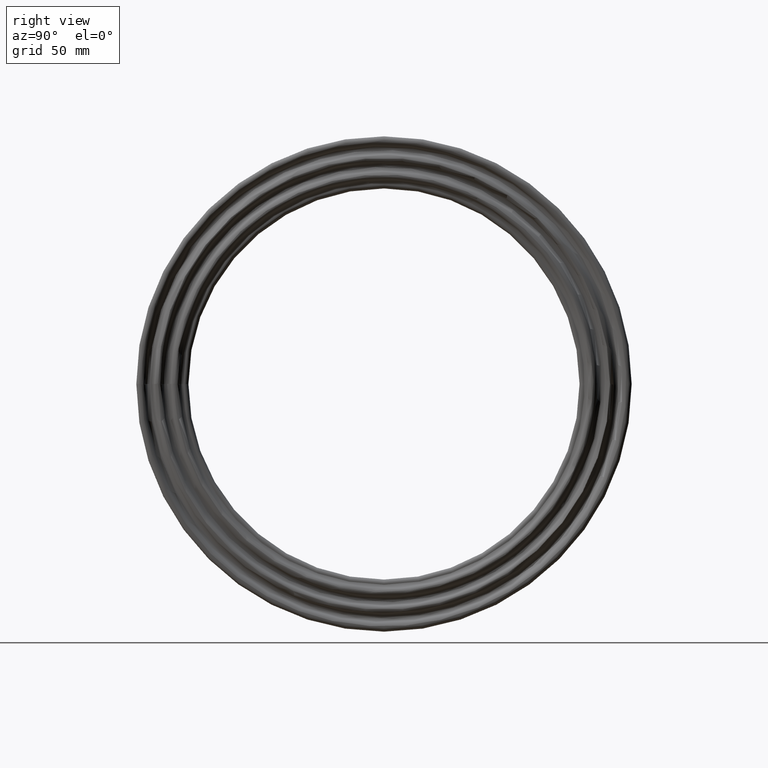
[diagram: clean part render]
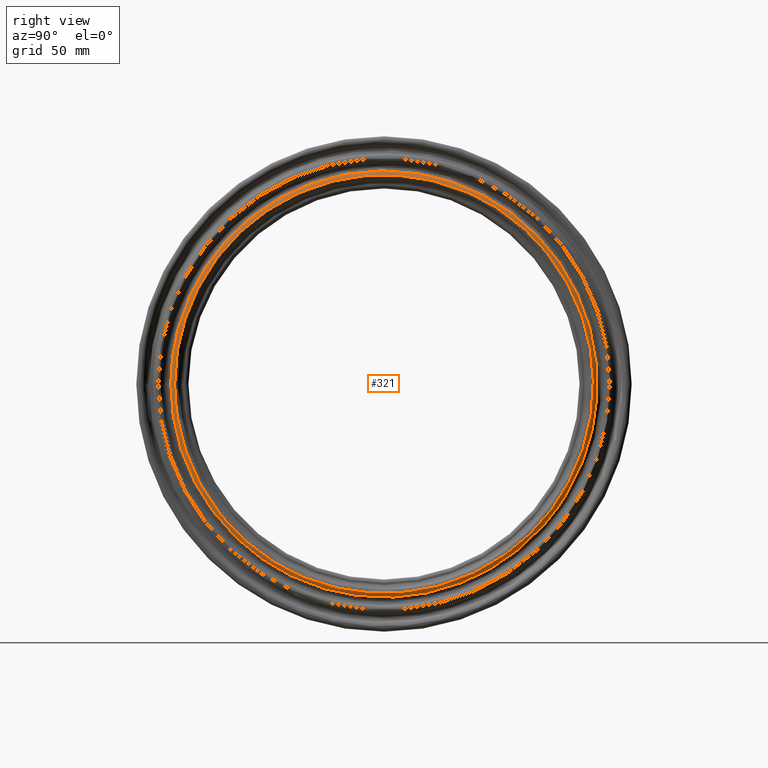
[diagram: same view with one face highlighted and labeled with its STEP entity id]
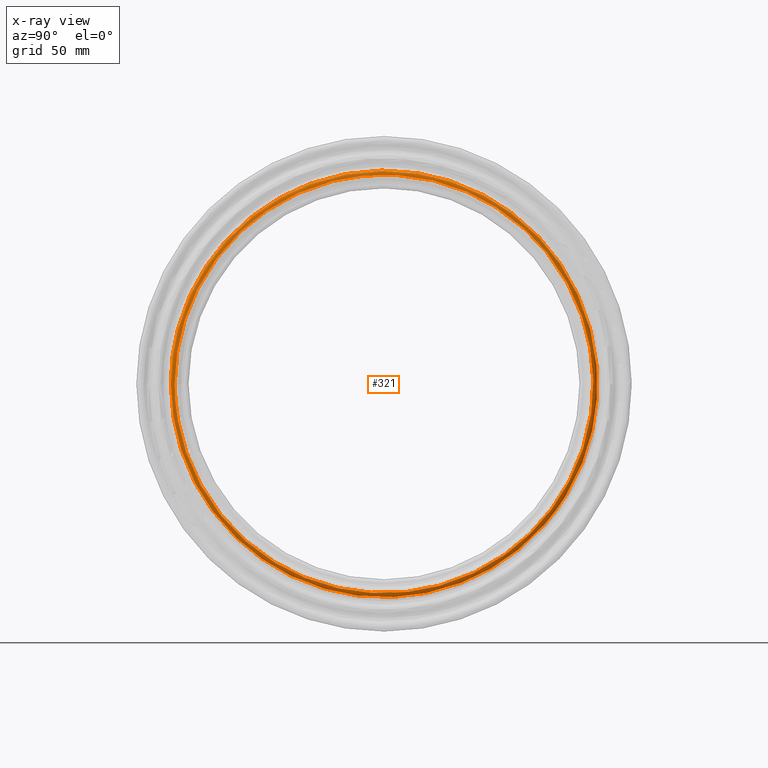
[diagram: x-ray of the same camera — body ghosted, the highlighted face saturated]
A machine part, right view. The second image highlights one B-rep face of the part: STEP entity #321.
The next image is the same camera in x-ray: the body ghosted, the highlighted face saturated — about 0% of this face is hidden behind the body in this view.
In plain terms, the highlighted face is a freeform B-spline surface patch.
Its self-contained STEP definition (entity closure, byte-faithful):
#18=B_SPLINE_SURFACE_WITH_KNOTS('',3,3,((#1991,#1992,#1993,#1994,#1995,
#1996,#1997,#1998,#1999,#2000,#2001,#2002,#2003,#2004,#2005,#2006,#2007,
#2008,#2009,#2010,#2011,#2012,#2013,#2014,#2015,#2016,#2017,#2018,#2019,
#2020,#2021,#2022,#2023,#2024,#2025,#2026,#2027,#2028,#2029,#2030,#2031,
#2032,#2033,#2034,#2035,#2036,#2037,#2038,#2039,#2040,#2041,#2042,#2043,
#2044,#2045,#2046,#2047,#2048,#2049,#2050,#2051),(#2052,#2053,#2054,#2055,
#2056,#2057,#2058,#2059,#2060,#2061,#2062,#2063,#2064,#2065,#2066,#2067,
#2068,#2069,#2070,#2071,#2072,#2073,#2074,#2075,#2076,#2077,#2078,#2079,
#2080,#2081,#2082,#2083,#2084,#2085,#2086,#2087,#2088,#2089,#2090,#2091,
#2092,#2093,#2094,#2095,#2096,#2097,#2098,#2099,#2100,#2101,#2102,#2103,
#2104,#2105,#2106,#2107,#2108,#2109,#2110,#2111,#2112),(#2113,#2114,#2115,
#2116,#2117,#2118,#2119,#2120,#2121,#2122,#2123,#2124,#2125,#2126,#2127,
#2128,#2129,#2130,#2131,#2132,#2133,#2134,#2135,#2136,#2137,#2138,#2139,
#2140,#2141,#2142,#2143,#2144,#2145,#2146,#2147,#2148,#2149,#2150,#2151,
#2152,#2153,#2154,#2155,#2156,#2157,#2158,#2159,#2160,#2161,#2162,#2163,
#2164,#2165,#2166,#2167,#2168,#2169,#2170,#2171,#2172,#2173),(#2174,#2175,
#2176,#2177,#2178,#2179,#2180,#2181,#2182,#2183,#2184,#2185,#2186,#2187,
#2188,#2189,#2190,#2191,#2192,#2193,#2194,#2195,#2196,#2197,#2198,#2199,
#2200,#2201,#2202,#2203,#2204,#2205,#2206,#2207,#2208,#2209,#2210,#2211,
#2212,#2213,#2214,#2215,#2216,#2217,#2218,#2219,#2220,#2221,#2222,#2223,
#2224,#2225,#2226,#2227,#2228,#2229,#2230,#2231,#2232,#2233,#2234),(#2235,
#2236,#2237,#2238,#2239,#2240,#2241,#2242,#2243,#2244,#2245,#2246,#2247,
#2248,#2249,#2250,#2251,#2252,#2253,#2254,#2255,#2256,#2257,#2258,#2259,
#2260,#2261,#2262,#2263,#2264,#2265,#2266,#2267,#2268,#2269,#2270,#2271,
#2272,#2273,#2274,#2275,#2276,#2277,#2278,#2279,#2280,#2281,#2282,#2283,
#2284,#2285,#2286,#2287,#2288,#2289,#2290,#2291,#2292,#2293,#2294,#2295)),
 .UNSPECIFIED.,.F.,.T.,.F.,(4,1,4),(4,1,1,1,1,1,1,1,1,1,1,1,1,1,1,1,1,1,
1,1,1,1,1,1,1,1,1,1,1,1,1,1,1,1,1,1,1,1,1,1,1,1,1,1,1,1,1,1,1,1,1,1,1,1,
1,1,1,1,4),(0.,0.571428571428571,1.),(50.0204659856099,51.8069111993817,
53.5933564131535,55.3798016269253,57.1662468406971,60.7391372682406,62.5255824820124,
64.3120276957842,67.4879302980452,69.0758815991756,72.6487720267192,73.8397355025671,
75.0306989784149,76.2216624542628,78.6035894059585,79.7945528818063,80.9855163576542,
83.3674433093499,85.7493702610456,86.9403337368935,88.1312972127413,92.8951511161327,
94.0861145919806,95.2770780678285,97.6590050195242,98.849968495372,100.636413709144,
102.422858922916,104.804785874611,107.186712826307,108.377676302155,111.950566729698,
113.141530205546,114.332493681394,115.22571628828,116.71442063309,119.096347584786,
120.287311060633,120.585051929595,121.478274536481,123.264719750253,125.051164964025,
126.837610177797,128.624055391568,130.41050060534,131.601464081188,133.38790929496,
135.769836246656,137.556281460427,138.896115370756,139.342726674199,141.129171887971,
142.915617101743,143.362228405186,144.702062315514,146.488507529286,148.274952743058,
148.721564046501,150.06139795683),.UNSPECIFIED.);
#26=B_SPLINE_CURVE_WITH_KNOTS('',3,(#962,#963,#964,#965,#966,#967,#968,
#969,#970,#971,#972,#973,#974,#975,#976,#977,#978,#979,#980,#981,#982,#983,
#984,#985,#986,#987,#988,#989,#990,#991,#992,#993,#994,#995,#996,#997,#998,
#999,#1000,#1001,#1002,#1003,#1004,#1005,#1006,#1007,#1008,#1009,#1010,
#1011,#1012,#1013,#1014,#1015,#1016,#1017,#1018,#1019,#1020,#1021,#1022),
 .UNSPECIFIED.,.T.,.F.,(4,1,1,1,1,1,1,1,1,1,1,1,1,1,1,1,1,1,1,1,1,1,1,1,
1,1,1,1,1,1,1,1,1,1,1,1,1,1,1,1,1,1,1,1,1,1,1,1,1,1,1,1,1,1,1,1,1,1,4),
(50.0204659856099,51.8069111993817,53.5933564131535,55.3798016269253,57.1662468406971,
60.7391372682406,62.5255824820124,64.3120276957842,67.4879302980452,69.0758815991756,
72.6487720267192,73.8397355025671,75.0306989784149,76.2216624542628,78.6035894059585,
79.7945528818063,80.9855163576542,83.3674433093499,85.7493702610456,86.9403337368935,
88.1312972127413,92.8951511161327,94.0861145919806,95.2770780678285,97.6590050195242,
98.849968495372,100.636413709144,102.422858922916,104.804785874611,107.186712826307,
108.377676302155,111.950566729698,113.141530205546,114.332493681394,115.22571628828,
116.71442063309,119.096347584786,120.287311060633,120.585051929595,121.478274536481,
123.264719750253,125.051164964025,126.837610177797,128.624055391568,130.41050060534,
131.601464081188,133.38790929496,135.769836246656,137.556281460427,138.896115370756,
139.342726674199,141.129171887971,142.915617101743,143.362228405186,144.702062315514,
146.488507529286,148.274952743058,148.721564046501,150.06139795683),
 .UNSPECIFIED.);
#31=B_SPLINE_CURVE_WITH_KNOTS('',3,(#2298,#2299,#2300,#2301,#2302,#2303,
#2304,#2305,#2306,#2307,#2308,#2309,#2310,#2311,#2312,#2313,#2314,#2315,
#2316,#2317,#2318,#2319,#2320,#2321,#2322,#2323,#2324,#2325,#2326,#2327,
#2328,#2329,#2330,#2331,#2332,#2333,#2334,#2335,#2336,#2337,#2338,#2339,
#2340,#2341,#2342,#2343,#2344,#2345,#2346,#2347,#2348,#2349,#2350,#2351,
#2352,#2353,#2354,#2355,#2356,#2357,#2358),.UNSPECIFIED.,.T.,.F.,(4,1,1,
1,1,1,1,1,1,1,1,1,1,1,1,1,1,1,1,1,1,1,1,1,1,1,1,1,1,1,1,1,1,1,1,1,1,1,1,
1,1,1,1,1,1,1,1,1,1,1,1,1,1,1,1,1,1,1,4),(-150.06139795683,-148.721564046501,
-148.274952743058,-146.488507529286,-144.702062315514,-143.362228405186,
-142.915617101743,-141.129171887971,-139.342726674199,-138.896115370756,
-137.556281460427,-135.769836246656,-133.38790929496,-131.601464081188,
-130.41050060534,-128.624055391568,-126.837610177797,-125.051164964025,
-123.264719750253,-121.478274536481,-120.585051929595,-120.287311060633,
-119.096347584786,-116.71442063309,-115.22571628828,-114.332493681394,-113.141530205546,
-111.950566729698,-108.377676302155,-107.186712826307,-104.804785874611,
-102.422858922916,-100.636413709144,-98.849968495372,-97.6590050195242,
-95.2770780678285,-94.0861145919806,-92.8951511161327,-88.1312972127413,
-86.9403337368935,-85.7493702610456,-83.3674433093499,-80.9855163576542,
-79.7945528818063,-78.6035894059585,-76.2216624542628,-75.0306989784149,
-73.8397355025671,-72.6487720267192,-69.0758815991756,-67.4879302980452,
-64.3120276957842,-62.5255824820124,-60.7391372682406,-57.1662468406971,
-55.3798016269253,-53.5933564131535,-51.8069111993817,-50.0204659856099),
 .UNSPECIFIED.);
#82=FACE_OUTER_BOUND('',#123,.T.);
#123=EDGE_LOOP('',(#267,#268,#269,#270));
#160=CIRCLE('',#363,3.15000000000001);
#174=VERTEX_POINT('',#961);
#187=VERTEX_POINT('',#2296);
#203=EDGE_CURVE('',#174,#174,#26,.T.);
#218=EDGE_CURVE('',#187,#174,#160,.T.);
#219=EDGE_CURVE('',#187,#187,#31,.T.);
#267=ORIENTED_EDGE('',*,*,#218,.T.);
#268=ORIENTED_EDGE('',*,*,#203,.T.);
#269=ORIENTED_EDGE('',*,*,#218,.F.);
#270=ORIENTED_EDGE('',*,*,#219,.T.);
#321=ADVANCED_FACE('',(#82),#18,.F.);
#363=AXIS2_PLACEMENT_3D('',#2297,#439,#440);
#439=DIRECTION('center_axis',(0.,0.000811828910618047,0.999999670466856));
#440=DIRECTION('ref_axis',(0.357142857142858,-0.934049465815499,0.000758288610177595));
#961=CARTESIAN_POINT('',(161.,-160.182100307558,0.130040502846663));
#962=CARTESIAN_POINT('Ctrl Pts',(161.,-160.182217161811,0.131077211763946));
#963=CARTESIAN_POINT('Ctrl Pts',(161.,-160.17685338477,6.10006889185622));
#964=CARTESIAN_POINT('Ctrl Pts',(161.,-159.49869896308,18.0865289440742));
#965=CARTESIAN_POINT('Ctrl Pts',(161.,-156.452207686915,35.9231445181339));
#966=CARTESIAN_POINT('Ctrl Pts',(161.,-151.436522652501,53.2041035957932));
#967=CARTESIAN_POINT('Ctrl Pts',(161.,-142.299373202569,75.2540143927501));
#968=CARTESIAN_POINT('Ctrl Pts',(161.,-129.325462171906,95.8508988559387));
#969=CARTESIAN_POINT('Ctrl Pts',(161.,-113.394423673286,113.599101769618));
#970=CARTESIAN_POINT('Ctrl Pts',(161.,-96.4785436739874,128.719763633802));
#971=CARTESIAN_POINT('Ctrl Pts',(161.,-77.7977212089984,140.723693796945));
#972=CARTESIAN_POINT('Ctrl Pts',(161.,-52.439536006824,152.126138464357));
#973=CARTESIAN_POINT('Ctrl Pts',(161.,-31.576952268991,157.713676121384));
#974=CARTESIAN_POINT('Ctrl Pts',(161.,-11.7192605399758,159.896652623519));
#975=CARTESIAN_POINT('Ctrl Pts',(161.,0.184152458222829,160.332137622436));
#976=CARTESIAN_POINT('Ctrl Pts',(161.,16.171134752522,159.71528869166));
#977=CARTESIAN_POINT('Ctrl Pts',(161.,32.0820096288011,157.296398825762));
#978=CARTESIAN_POINT('Ctrl Pts',(161.,47.5366498968946,153.120757297653));
#979=CARTESIAN_POINT('Ctrl Pts',(161.,62.5242275773635,147.850220268969));
#980=CARTESIAN_POINT('Ctrl Pts',(161.,80.5897632097906,139.134466120523));
#981=CARTESIAN_POINT('Ctrl Pts',(161.,97.205309580386,127.75598808102));
#982=CARTESIAN_POINT('Ctrl Pts',(161.,109.229919327096,117.359830726874));
#983=CARTESIAN_POINT('Ctrl Pts',(161.,126.14933778704,100.422916751779));
#984=CARTESIAN_POINT('Ctrl Pts',(161.,139.861418114574,80.2143438391541));
#985=CARTESIAN_POINT('Ctrl Pts',(161.,149.321453736568,58.3723127178469));
#986=CARTESIAN_POINT('Ctrl Pts',(161.,154.585580532244,43.2905421479426));
#987=CARTESIAN_POINT('Ctrl Pts',(161.,158.102741740798,27.782074089411));
#988=CARTESIAN_POINT('Ctrl Pts',(161.,160.111235684743,9.93508578134736));
#989=CARTESIAN_POINT('Ctrl Pts',(161.,160.402764696786,-5.95354013930585));
#990=CARTESIAN_POINT('Ctrl Pts',(161.,158.552017168216,-25.8880343458323));
#991=CARTESIAN_POINT('Ctrl Pts',(161.,153.605988202001,-47.4923159553659));
#992=CARTESIAN_POINT('Ctrl Pts',(161.,146.327194139291,-66.0058998359512));
#993=CARTESIAN_POINT('Ctrl Pts',(161.,135.125258592552,-87.2385835683957));
#994=CARTESIAN_POINT('Ctrl Pts',(161.,123.098962174474,-103.498635483902));
#995=CARTESIAN_POINT('Ctrl Pts',(161.,109.05752491777,-117.523234232649));
#996=CARTESIAN_POINT('Ctrl Pts',(161.,100.716851446407,-124.706444279632));
#997=CARTESIAN_POINT('Ctrl Pts',(161.,91.1169885578279,-131.929579585935));
#998=CARTESIAN_POINT('Ctrl Pts',(161.,77.5744812368648,-140.605034341536));
#999=CARTESIAN_POINT('Ctrl Pts',(161.,62.3005274143973,-147.944509824352));
#1000=CARTESIAN_POINT('Ctrl Pts',(161.,50.0766680112518,-152.22266533277));
#1001=CARTESIAN_POINT('Ctrl Pts',(161.,42.3972088056839,-154.511053599175));
#1002=CARTESIAN_POINT('Ctrl Pts',(161.,32.7065788824018,-157.011486513896));
#1003=CARTESIAN_POINT('Ctrl Pts',(161.,17.8282814420963,-159.524622290507));
#1004=CARTESIAN_POINT('Ctrl Pts',(161.,-0.0554432997155231,-160.515271830491));
#1005=CARTESIAN_POINT('Ctrl Pts',(161.,-18.0002809091937,-159.507553380767));
#1006=CARTESIAN_POINT('Ctrl Pts',(161.,-35.8378569025271,-156.471336779666));
#1007=CARTESIAN_POINT('Ctrl Pts',(161.,-51.2305825269405,-152.016222292207));
#1008=CARTESIAN_POINT('Ctrl Pts',(161.,-66.0165202855366,-146.201894574956));
#1009=CARTESIAN_POINT('Ctrl Pts',(161.,-82.1061068543575,-138.083924300881));
#1010=CARTESIAN_POINT('Ctrl Pts',(161.,-98.7356265981504,-126.718393051325));
#1011=CARTESIAN_POINT('Ctrl Pts',(161.,-112.456394018667,-114.428865752443));
#1012=CARTESIAN_POINT('Ctrl Pts',(161.,-120.546307955399,-105.622890479112));
#1013=CARTESIAN_POINT('Ctrl Pts',(161.,-128.165567446644,-96.3293467019235));
#1014=CARTESIAN_POINT('Ctrl Pts',(161.,-135.999050544746,-85.2724973863836));
#1015=CARTESIAN_POINT('Ctrl Pts',(161.,-142.528065653359,-73.4228690557085));
#1016=CARTESIAN_POINT('Ctrl Pts',(161.,-147.537267423109,-62.6083283019011));
#1017=CARTESIAN_POINT('Ctrl Pts',(161.,-151.951425639961,-51.5011340191068));
#1018=CARTESIAN_POINT('Ctrl Pts',(161.,-156.529200186507,-35.5794665574776));
#1019=CARTESIAN_POINT('Ctrl Pts',(161.,-158.781822471634,-22.2250732904864));
#1020=CARTESIAN_POINT('Ctrl Pts',(161.,-159.941318696278,-10.2964794688851));
#1021=CARTESIAN_POINT('Ctrl Pts',(161.,-160.186239994591,-4.34566654830531));
#1022=CARTESIAN_POINT('Ctrl Pts',(161.,-160.182217161811,0.131077211763946));
#1991=CARTESIAN_POINT('Ctrl Pts',(161.,-160.182217161811,0.131077211763946));
#1992=CARTESIAN_POINT('Ctrl Pts',(161.,-160.17685338477,6.10006889185621));
#1993=CARTESIAN_POINT('Ctrl Pts',(161.,-159.49869896308,18.0865289440742));
#1994=CARTESIAN_POINT('Ctrl Pts',(161.,-156.452207686915,35.9231445181339));
#1995=CARTESIAN_POINT('Ctrl Pts',(161.,-151.436522652501,53.2041035957932));
#1996=CARTESIAN_POINT('Ctrl Pts',(161.,-142.299373202569,75.2540143927501));
#1997=CARTESIAN_POINT('Ctrl Pts',(161.,-129.325462171906,95.8508988559387));
#1998=CARTESIAN_POINT('Ctrl Pts',(161.,-113.394423673286,113.599101769618));
#1999=CARTESIAN_POINT('Ctrl Pts',(161.,-96.4785436739874,128.719763633802));
#2000=CARTESIAN_POINT('Ctrl Pts',(161.,-77.7977212089984,140.723693796945));
#2001=CARTESIAN_POINT('Ctrl Pts',(161.,-52.439536006824,152.126138464357));
#2002=CARTESIAN_POINT('Ctrl Pts',(161.,-31.576952268991,157.713676121384));
#2003=CARTESIAN_POINT('Ctrl Pts',(161.,-11.7192605399758,159.896652623519));
#2004=CARTESIAN_POINT('Ctrl Pts',(161.,0.184152458222829,160.332137622436));
#2005=CARTESIAN_POINT('Ctrl Pts',(161.,16.171134752522,159.71528869166));
#2006=CARTESIAN_POINT('Ctrl Pts',(161.,32.0820096288011,157.296398825762));
#2007=CARTESIAN_POINT('Ctrl Pts',(161.,47.5366498968946,153.120757297653));
#2008=CARTESIAN_POINT('Ctrl Pts',(161.,62.5242275773635,147.850220268969));
#2009=CARTESIAN_POINT('Ctrl Pts',(161.,80.5897632097906,139.134466120523));
#2010=CARTESIAN_POINT('Ctrl Pts',(161.,97.205309580386,127.75598808102));
#2011=CARTESIAN_POINT('Ctrl Pts',(161.,109.229919327096,117.359830726874));
#2012=CARTESIAN_POINT('Ctrl Pts',(161.,126.14933778704,100.422916751779));
#2013=CARTESIAN_POINT('Ctrl Pts',(161.,139.861418114574,80.2143438391541));
#2014=CARTESIAN_POINT('Ctrl Pts',(161.,149.321453736568,58.3723127178469));
#2015=CARTESIAN_POINT('Ctrl Pts',(161.,154.585580532244,43.2905421479426));
#2016=CARTESIAN_POINT('Ctrl Pts',(161.,158.102741740798,27.782074089411));
#2017=CARTESIAN_POINT('Ctrl Pts',(161.,160.111235684743,9.93508578134736));
#2018=CARTESIAN_POINT('Ctrl Pts',(161.,160.402764696786,-5.95354013930585));
#2019=CARTESIAN_POINT('Ctrl Pts',(161.,158.552017168216,-25.8880343458323));
#2020=CARTESIAN_POINT('Ctrl Pts',(161.,153.605988202001,-47.4923159553659));
#2021=CARTESIAN_POINT('Ctrl Pts',(161.,146.327194139291,-66.0058998359512));
#2022=CARTESIAN_POINT('Ctrl Pts',(161.,135.125258592552,-87.2385835683957));
#2023=CARTESIAN_POINT('Ctrl Pts',(161.,123.098962174474,-103.498635483902));
#2024=CARTESIAN_POINT('Ctrl Pts',(161.,109.05752491777,-117.523234232649));
#2025=CARTESIAN_POINT('Ctrl Pts',(161.,100.716851446407,-124.706444279632));
#2026=CARTESIAN_POINT('Ctrl Pts',(161.,91.1169885578279,-131.929579585935));
#2027=CARTESIAN_POINT('Ctrl Pts',(161.,77.5744812368648,-140.605034341536));
#2028=CARTESIAN_POINT('Ctrl Pts',(161.,62.3005274143973,-147.944509824352));
#2029=CARTESIAN_POINT('Ctrl Pts',(161.,50.0766680112518,-152.22266533277));
#2030=CARTESIAN_POINT('Ctrl Pts',(161.,42.3972088056839,-154.511053599175));
#2031=CARTESIAN_POINT('Ctrl Pts',(161.,32.7065788824018,-157.011486513896));
#2032=CARTESIAN_POINT('Ctrl Pts',(161.,17.8282814420963,-159.524622290507));
#2033=CARTESIAN_POINT('Ctrl Pts',(161.,-0.0554432997155231,-160.515271830491));
#2034=CARTESIAN_POINT('Ctrl Pts',(161.,-18.0002809091937,-159.507553380767));
#2035=CARTESIAN_POINT('Ctrl Pts',(161.,-35.8378569025271,-156.471336779666));
#2036=CARTESIAN_POINT('Ctrl Pts',(161.,-51.2305825269405,-152.016222292207));
#2037=CARTESIAN_POINT('Ctrl Pts',(161.,-66.0165202855366,-146.201894574956));
#2038=CARTESIAN_POINT('Ctrl Pts',(161.,-82.1061068543575,-138.083924300881));
#2039=CARTESIAN_POINT('Ctrl Pts',(161.,-98.7356265981504,-126.718393051325));
#2040=CARTESIAN_POINT('Ctrl Pts',(161.,-112.456394018667,-114.428865752443));
#2041=CARTESIAN_POINT('Ctrl Pts',(161.,-120.546307955399,-105.622890479112));
#2042=CARTESIAN_POINT('Ctrl Pts',(161.,-128.165567446644,-96.3293467019235));
#2043=CARTESIAN_POINT('Ctrl Pts',(161.,-135.999050544746,-85.2724973863836));
#2044=CARTESIAN_POINT('Ctrl Pts',(161.,-142.528065653359,-73.4228690557085));
#2045=CARTESIAN_POINT('Ctrl Pts',(161.,-147.537267423109,-62.6083283019011));
#2046=CARTESIAN_POINT('Ctrl Pts',(161.,-151.951425639961,-51.5011340191068));
#2047=CARTESIAN_POINT('Ctrl Pts',(161.,-156.529200186507,-35.5794665574776));
#2048=CARTESIAN_POINT('Ctrl Pts',(161.,-158.781822471634,-22.2250732904864));
#2049=CARTESIAN_POINT('Ctrl Pts',(161.,-159.941318696278,-10.2964794688851));
#2050=CARTESIAN_POINT('Ctrl Pts',(161.,-160.186239994591,-4.34566654830531));
#2051=CARTESIAN_POINT('Ctrl Pts',(161.,-160.182217161811,0.131077211763946));
#2052=CARTESIAN_POINT('Ctrl Pts',(161.,-160.905571362199,0.131670827141491));
#2053=CARTESIAN_POINT('Ctrl Pts',(161.,-160.900183297793,6.12761680648448));
#2054=CARTESIAN_POINT('Ctrl Pts',(161.,-160.218966957375,18.1682046673012));
#2055=CARTESIAN_POINT('Ctrl Pts',(161.,-157.158717362183,36.0853674747583));
#2056=CARTESIAN_POINT('Ctrl Pts',(161.,-152.120383989383,53.4443622828503));
#2057=CARTESIAN_POINT('Ctrl Pts',(161.,-142.941967941786,75.5938547666236));
#2058=CARTESIAN_POINT('Ctrl Pts',(161.,-129.90947701556,96.2837382079044));
#2059=CARTESIAN_POINT('Ctrl Pts',(161.,-113.906492143184,114.112096219903));
#2060=CARTESIAN_POINT('Ctrl Pts',(161.,-96.9142208308537,129.301040528929));
#2061=CARTESIAN_POINT('Ctrl Pts',(161.,-78.1490486196928,141.359173147394));
#2062=CARTESIAN_POINT('Ctrl Pts',(161.,-52.6763317948518,152.813118617159));
#2063=CARTESIAN_POINT('Ctrl Pts',(161.,-31.7195576777364,158.42587933957));
#2064=CARTESIAN_POINT('Ctrl Pts',(161.,-11.7721769004287,160.618718870412));
#2065=CARTESIAN_POINT('Ctrl Pts',(161.,0.184979085731019,161.056168477057));
#2066=CARTESIAN_POINT('Ctrl Pts',(161.,16.2441737348342,160.43653377117));
#2067=CARTESIAN_POINT('Ctrl Pts',(161.,32.2268748725982,158.006722800822));
#2068=CARTESIAN_POINT('Ctrl Pts',(161.,47.75131866223,153.81222336573));
#2069=CARTESIAN_POINT('Ctrl Pts',(161.,62.8065810692181,148.517882803811));
#2070=CARTESIAN_POINT('Ctrl Pts',(161.,80.9536844700633,139.76277685162));
#2071=CARTESIAN_POINT('Ctrl Pts',(161.,97.6442727016972,128.332910524784));
#2072=CARTESIAN_POINT('Ctrl Pts',(161.,109.723180262386,117.889809011776));
#2073=CARTESIAN_POINT('Ctrl Pts',(161.,126.719013653228,100.876397581466));
#2074=CARTESIAN_POINT('Ctrl Pts',(161.,140.493000692419,80.5765893137936));
#2075=CARTESIAN_POINT('Ctrl Pts',(161.,149.995763076018,58.6359110985306));
#2076=CARTESIAN_POINT('Ctrl Pts',(161.,155.283662152394,43.4860332219207));
#2077=CARTESIAN_POINT('Ctrl Pts',(161.,158.816705476016,27.9075286319605));
#2078=CARTESIAN_POINT('Ctrl Pts',(161.,160.834269753792,9.97995638313305));
#2079=CARTESIAN_POINT('Ctrl Pts',(161.,161.127114208463,-5.98042702318959));
#2080=CARTESIAN_POINT('Ctrl Pts',(161.,159.268010647087,-26.0049416472498));
#2081=CARTESIAN_POINT('Ctrl Pts',(161.,154.299643514535,-47.7067831134268));
#2082=CARTESIAN_POINT('Ctrl Pts',(161.,146.987984711453,-66.3039680036397));
#2083=CARTESIAN_POINT('Ctrl Pts',(161.,135.735452735767,-87.6325450523205));
#2084=CARTESIAN_POINT('Ctrl Pts',(161.,123.654867749642,-103.966005175661));
#2085=CARTESIAN_POINT('Ctrl Pts',(161.,109.550005226078,-118.053950909594));
#2086=CARTESIAN_POINT('Ctrl Pts',(161.,101.17167850177,-125.269591177514));
#2087=CARTESIAN_POINT('Ctrl Pts',(161.,91.5284475724872,-132.525355349126));
#2088=CARTESIAN_POINT('Ctrl Pts',(161.,77.9248004824348,-141.239979187093));
#2089=CARTESIAN_POINT('Ctrl Pts',(161.,62.5818622123194,-148.612601132942));
#2090=CARTESIAN_POINT('Ctrl Pts',(161.,50.3028124164259,-152.910073773076));
#2091=CARTESIAN_POINT('Ctrl Pts',(161.,42.5886621497834,-155.208799062429));
#2092=CARTESIAN_POINT('Ctrl Pts',(161.,32.8542711041095,-157.720523535738));
#2093=CARTESIAN_POINT('Ctrl Pts',(161.,17.9087935185493,-160.245006409663));
#2094=CARTESIAN_POINT('Ctrl Pts',(161.,-0.0556953456889278,-161.240130319743));
#2095=CARTESIAN_POINT('Ctrl Pts',(161.,-18.0815653620976,-160.227861115138));
#2096=CARTESIAN_POINT('Ctrl Pts',(161.,-35.9996975087079,-157.177932664667));
#2097=CARTESIAN_POINT('Ctrl Pts',(161.,-51.4619239976,-152.702702622633));
#2098=CARTESIAN_POINT('Ctrl Pts',(161.,-66.314645089024,-146.862113824237));
#2099=CARTESIAN_POINT('Ctrl Pts',(161.,-82.4768829829011,-138.707486403197));
#2100=CARTESIAN_POINT('Ctrl Pts',(161.,-99.1814974856088,-127.290631980156));
#2101=CARTESIAN_POINT('Ctrl Pts',(161.,-112.964227409739,-114.945605922073));
#2102=CARTESIAN_POINT('Ctrl Pts',(161.,-121.090669952295,-106.099868165461));
#2103=CARTESIAN_POINT('Ctrl Pts',(161.,-128.74434568274,-96.7643472085497));
#2104=CARTESIAN_POINT('Ctrl Pts',(161.,-136.613196439576,-85.657571610488));
#2105=CARTESIAN_POINT('Ctrl Pts',(161.,-143.17169422746,-73.7544411913721));
#2106=CARTESIAN_POINT('Ctrl Pts',(161.,-148.203521013613,-62.8910510833555));
#2107=CARTESIAN_POINT('Ctrl Pts',(161.,-152.637611163852,-51.7337062452975));
#2108=CARTESIAN_POINT('Ctrl Pts',(161.,-157.236058409469,-35.7401323827709));
#2109=CARTESIAN_POINT('Ctrl Pts',(161.,-159.498851998288,-22.3254455426879));
#2110=CARTESIAN_POINT('Ctrl Pts',(161.,-160.663585395556,-10.3429736734099));
#2111=CARTESIAN_POINT('Ctrl Pts',(161.,-160.909612410503,-4.3652886573658));
#2112=CARTESIAN_POINT('Ctrl Pts',(161.,-160.905571362199,0.131670827141491));
#2113=CARTESIAN_POINT('Ctrl Pts',(160.545629294165,-162.166518676471,0.132700563507517));
#2114=CARTESIAN_POINT('Ctrl Pts',(160.545629294165,-162.16108846976,6.17563492121793));
#2115=CARTESIAN_POINT('Ctrl Pts',(160.545629294165,-161.474533102316,18.310580776123));
#2116=CARTESIAN_POINT('Ctrl Pts',(160.545629294165,-158.390302789684,36.3681522935781));
#2117=CARTESIAN_POINT('Ctrl Pts',(160.545629294165,-153.312484189501,53.8631845037996));
#2118=CARTESIAN_POINT('Ctrl Pts',(160.545629294165,-144.062146932993,76.1862427066218));
#2119=CARTESIAN_POINT('Ctrl Pts',(160.545629294165,-130.927516095077,97.0382798355966));
#2120=CARTESIAN_POINT('Ctrl Pts',(160.545629294164,-114.799128560401,115.006341760599));
#2121=CARTESIAN_POINT('Ctrl Pts',(160.545629294165,-97.6736989502328,130.31431494717));
#2122=CARTESIAN_POINT('Ctrl Pts',(160.545629294164,-78.7614603677511,142.466948339821));
#2123=CARTESIAN_POINT('Ctrl Pts',(160.545629294165,-53.0891480631235,154.01064170425));
#2124=CARTESIAN_POINT('Ctrl Pts',(160.545629294165,-31.9681182240885,159.667398733082));
#2125=CARTESIAN_POINT('Ctrl Pts',(160.545629294165,-11.8644374834129,161.8774162463));
#2126=CARTESIAN_POINT('Ctrl Pts',(160.545629294165,0.186434881815352,162.318296403929));
#2127=CARTESIAN_POINT('Ctrl Pts',(160.545629294165,16.3714560523639,161.693806133067));
#2128=CARTESIAN_POINT('Ctrl Pts',(160.545629294164,32.4794371021919,159.244951083467));
#2129=CARTESIAN_POINT('Ctrl Pts',(160.545629294165,48.12552287274,155.017582988299));
#2130=CARTESIAN_POINT('Ctrl Pts',(160.545629294164,63.2987624806615,149.681756375215));
#2131=CARTESIAN_POINT('Ctrl Pts',(160.545629294165,81.5880930170276,140.858031749367));
#2132=CARTESIAN_POINT('Ctrl Pts',(160.545629294165,98.4094669129722,129.338600885359));
#2133=CARTESIAN_POINT('Ctrl Pts',(160.545629294165,110.583035593293,118.813657536317));
#2134=CARTESIAN_POINT('Ctrl Pts',(160.545629294165,127.712045678577,101.666936043093));
#2135=CARTESIAN_POINT('Ctrl Pts',(160.545629294165,141.59399166724,81.2080183814078));
#2136=CARTESIAN_POINT('Ctrl Pts',(160.545629294164,151.171214445109,59.0954160106095));
#2137=CARTESIAN_POINT('Ctrl Pts',(160.545629294165,156.500551965605,43.8268160111951));
#2138=CARTESIAN_POINT('Ctrl Pts',(160.545629294164,160.061283161118,28.1262332461588));
#2139=CARTESIAN_POINT('Ctrl Pts',(160.545629294165,162.09465779949,10.0581580861583));
#2140=CARTESIAN_POINT('Ctrl Pts',(160.545629294165,162.389798457892,-6.02729084440963));
#2141=CARTESIAN_POINT('Ctrl Pts',(160.545629294164,160.51612389869,-26.2087291556218));
#2142=CARTESIAN_POINT('Ctrl Pts',(160.545629294165,155.508825294157,-48.0806400664077));
#2143=CARTESIAN_POINT('Ctrl Pts',(160.545629294165,148.139861968663,-66.8235668063511));
#2144=CARTESIAN_POINT('Ctrl Pts',(160.545629294165,136.799161846644,-88.3192738229261));
#2145=CARTESIAN_POINT('Ctrl Pts',(160.545629294165,124.623881584997,-104.780756218507));
#2146=CARTESIAN_POINT('Ctrl Pts',(160.545629294165,110.408506106546,-118.979085131259));
#2147=CARTESIAN_POINT('Ctrl Pts',(160.545629294165,101.964507441314,-126.251281053266));
#2148=CARTESIAN_POINT('Ctrl Pts',(160.545629294165,92.2457275923313,-133.563892449944));
#2149=CARTESIAN_POINT('Ctrl Pts',(160.545629294165,78.5354549614407,-142.346818638481));
#2150=CARTESIAN_POINT('Ctrl Pts',(160.545629294165,63.0722931953111,-149.77721325909));
#2151=CARTESIAN_POINT('Ctrl Pts',(160.545629294165,50.6970048843628,-154.108366138397));
#2152=CARTESIAN_POINT('Ctrl Pts',(160.545629294165,42.9224171116157,-156.425101715857));
#2153=CARTESIAN_POINT('Ctrl Pts',(160.545629294164,33.1117418238266,-158.956509422575));
#2154=CARTESIAN_POINT('Ctrl Pts',(160.545629294165,18.0491335538697,-161.500777786051));
#2155=CARTESIAN_POINT('Ctrl Pts',(160.545629294164,-0.0561297202683403,
-162.503699086801));
#2156=CARTESIAN_POINT('Ctrl Pts',(160.545629294165,-18.2232647460638,-161.483497264871));
#2157=CARTESIAN_POINT('Ctrl Pts',(160.545629294164,-36.2818074888548,-158.409668890759));
#2158=CARTESIAN_POINT('Ctrl Pts',(160.545629294165,-51.8652171230945,-153.899364739271));
#2159=CARTESIAN_POINT('Ctrl Pts',(160.545629294165,-66.8343167535559,-148.013011529364));
#2160=CARTESIAN_POINT('Ctrl Pts',(160.545629294165,-83.1232190417291,-139.794477140772));
#2161=CARTESIAN_POINT('Ctrl Pts',(160.545629294164,-99.9587418398391,-128.288151865316));
#2162=CARTESIAN_POINT('Ctrl Pts',(160.545629294165,-113.849478590853,-115.84638499483));
#2163=CARTESIAN_POINT('Ctrl Pts',(160.545629294164,-122.039609525555,-106.931322380641));
#2164=CARTESIAN_POINT('Ctrl Pts',(160.545629294165,-129.753252550855,-97.5226544508723));
#2165=CARTESIAN_POINT('Ctrl Pts',(160.545629294164,-137.683776741861,-86.3288342924177));
#2166=CARTESIAN_POINT('Ctrl Pts',(160.545629294165,-144.293672112622,-74.332413339268));
#2167=CARTESIAN_POINT('Ctrl Pts',(160.545629294164,-149.364925716652,-63.3839075253871));
#2168=CARTESIAN_POINT('Ctrl Pts',(160.545629294165,-153.833765923664,-52.1391180048946));
#2169=CARTESIAN_POINT('Ctrl Pts',(160.545629294164,-158.468248849548,-36.0202181519999));
#2170=CARTESIAN_POINT('Ctrl Pts',(160.545629294165,-160.748776386525,-22.500390674269));
#2171=CARTESIAN_POINT('Ctrl Pts',(160.545629294165,-161.922635930457,-10.4240306351792));
#2172=CARTESIAN_POINT('Ctrl Pts',(160.545629294165,-162.170591331504,-4.39950020477535));
#2173=CARTESIAN_POINT('Ctrl Pts',(160.545629294165,-162.166518676471,0.132700563507517));
#2174=CARTESIAN_POINT('Ctrl Pts',(159.481736103982,-162.930719991228,0.133327581490456));
#2175=CARTESIAN_POINT('Ctrl Pts',(159.481736103982,-162.925264130241,6.20473836349623));
#2176=CARTESIAN_POINT('Ctrl Pts',(159.481736103982,-162.235473905201,18.3968686348639));
#2177=CARTESIAN_POINT('Ctrl Pts',(159.481736103982,-159.136708418073,36.5395357913181));
#2178=CARTESIAN_POINT('Ctrl Pts',(159.481736103982,-154.034962438183,54.1170104730538));
#2179=CARTESIAN_POINT('Ctrl Pts',(159.481736103982,-144.741028638854,76.5452730693002));
#2180=CARTESIAN_POINT('Ctrl Pts',(159.481736103982,-131.544509399206,97.4955616370546));
#2181=CARTESIAN_POINT('Ctrl Pts',(159.481736103982,-115.340113073581,115.54830442534));
#2182=CARTESIAN_POINT('Ctrl Pts',(159.481736103982,-98.133978562199,130.928415883531));
#2183=CARTESIAN_POINT('Ctrl Pts',(159.481736103982,-79.1326264212933,143.138312850983));
#2184=CARTESIAN_POINT('Ctrl Pts',(159.481736103982,-53.339316302321,154.736414561814));
#2185=CARTESIAN_POINT('Ctrl Pts',(159.481736103981,-32.1187757561414,160.419819624297));
#2186=CARTESIAN_POINT('Ctrl Pts',(159.481736103982,-11.9203423791514,162.640256766025));
#2187=CARTESIAN_POINT('Ctrl Pts',(159.481736103981,0.187308535315484,163.083212608046));
#2188=CARTESIAN_POINT('Ctrl Pts',(159.481736103982,16.4486185655668,162.455779265709));
#2189=CARTESIAN_POINT('Ctrl Pts',(159.481736103981,32.6324835401343,159.995386255992));
#2190=CARTESIAN_POINT('Ctrl Pts',(159.481736103982,48.3523136527804,155.748095467793));
#2191=CARTESIAN_POINT('Ctrl Pts',(159.481736103981,63.5970598333954,150.387121349647));
#2192=CARTESIAN_POINT('Ctrl Pts',(159.481736103982,81.9725650958839,141.52182227425));
#2193=CARTESIAN_POINT('Ctrl Pts',(159.481736103982,98.873217763976,129.948101633235));
#2194=CARTESIAN_POINT('Ctrl Pts',(159.481736103982,111.104150624791,119.373563022697));
#2195=CARTESIAN_POINT('Ctrl Pts',(159.481736103981,128.313890029511,102.14602527125));
#2196=CARTESIAN_POINT('Ctrl Pts',(159.481736103982,142.261239560584,81.5907186803267));
#2197=CARTESIAN_POINT('Ctrl Pts',(159.481736103981,151.883601354895,59.3738995745814));
#2198=CARTESIAN_POINT('Ctrl Pts',(159.481736103982,157.238053524051,44.0333463656359));
#2199=CARTESIAN_POINT('Ctrl Pts',(159.481736103981,160.815563735068,28.2587723879302));
#2200=CARTESIAN_POINT('Ctrl Pts',(159.481736103982,162.858520876892,10.1055621012004));
#2201=CARTESIAN_POINT('Ctrl Pts',(159.481736103982,163.155051333021,-6.05569588161629));
#2202=CARTESIAN_POINT('Ctrl Pts',(159.481736103982,161.272548771382,-26.3322379896552));
#2203=CARTESIAN_POINT('Ctrl Pts',(159.481736103982,156.24165078027,-48.3072179525686));
#2204=CARTESIAN_POINT('Ctrl Pts',(159.481736103982,148.83796652582,-67.1384667813375));
#2205=CARTESIAN_POINT('Ctrl Pts',(159.481736103982,137.443813575991,-88.7354813967731));
#2206=CARTESIAN_POINT('Ctrl Pts',(159.481736103982,125.211177724582,-105.274518636586));
#2207=CARTESIAN_POINT('Ctrl Pts',(159.481736103982,110.928796578151,-119.539770671683));
#2208=CARTESIAN_POINT('Ctrl Pts',(159.481736103982,102.445017597809,-126.846228667332));
#2209=CARTESIAN_POINT('Ctrl Pts',(159.481736103982,92.6804219281717,-134.193310718193));
#2210=CARTESIAN_POINT('Ctrl Pts',(159.481736103982,78.905555923474,-143.017618368223));
#2211=CARTESIAN_POINT('Ctrl Pts',(159.481736103982,63.3695149231812,-150.483031011723));
#2212=CARTESIAN_POINT('Ctrl Pts',(159.481736103982,50.9359189474303,-154.834591999799));
#2213=CARTESIAN_POINT('Ctrl Pts',(159.481736103982,43.1246819805646,-157.162248107487));
#2214=CARTESIAN_POINT('Ctrl Pts',(159.481736103982,33.2677744201366,-159.705584992629));
#2215=CARTESIAN_POINT('Ctrl Pts',(159.481736103982,18.1341918776026,-162.261841336901));
#2216=CARTESIAN_POINT('Ctrl Pts',(159.481736103982,-0.056395882162848,-163.269489617059));
#2217=CARTESIAN_POINT('Ctrl Pts',(159.481736103982,-18.3091393647723,-162.244480069013));
#2218=CARTESIAN_POINT('Ctrl Pts',(159.481736103982,-36.4527868501791,-159.156165609196));
#2219=CARTESIAN_POINT('Ctrl Pts',(159.481736103982,-52.1096226888111,-154.624609791585));
#2220=CARTESIAN_POINT('Ctrl Pts',(159.481736103982,-67.1492759567903,-148.71051288506));
#2221=CARTESIAN_POINT('Ctrl Pts',(159.481736103982,-83.5149325647584,-140.453251205457));
#2222=CARTESIAN_POINT('Ctrl Pts',(159.481736103982,-100.429790732358,-128.892704479579));
#2223=CARTESIAN_POINT('Ctrl Pts',(159.481736103982,-114.385988811898,-116.392304990064));
#2224=CARTESIAN_POINT('Ctrl Pts',(159.481736103982,-122.614711366599,-107.435234283516));
#2225=CARTESIAN_POINT('Ctrl Pts',(159.481736103982,-130.364713452628,-97.9822194055226));
#2226=CARTESIAN_POINT('Ctrl Pts',(159.481736103982,-138.332602965039,-86.735653363526));
#2227=CARTESIAN_POINT('Ctrl Pts',(159.481736103982,-144.973645956174,-74.6827085024279));
#2228=CARTESIAN_POINT('Ctrl Pts',(159.481736103982,-150.068801885175,-63.6825957538285));
#2229=CARTESIAN_POINT('Ctrl Pts',(159.481736103982,-154.558699675354,-52.3848231978196));
#2230=CARTESIAN_POINT('Ctrl Pts',(159.481736103982,-159.215022647505,-36.1899569477907));
#2231=CARTESIAN_POINT('Ctrl Pts',(159.481736103982,-161.506295931135,-22.606430306058));
#2232=CARTESIAN_POINT('Ctrl Pts',(159.481736103982,-162.685688309304,-10.4731505217613));
#2233=CARTESIAN_POINT('Ctrl Pts',(159.481736103982,-162.934811886968,-4.42023050501393));
#2234=CARTESIAN_POINT('Ctrl Pts',(159.481736103982,-162.930719991228,0.133327581490456));
#2235=CARTESIAN_POINT('Ctrl Pts',(158.975,-163.124475125531,0.133484863356037));
#2236=CARTESIAN_POINT('Ctrl Pts',(158.975,-163.119012825596,6.2121161377635));
#2237=CARTESIAN_POINT('Ctrl Pts',(158.975,-162.42840193225,18.4187458078725));
#2238=CARTESIAN_POINT('Ctrl Pts',(158.975,-159.325952114759,36.5829877885863));
#2239=CARTESIAN_POINT('Ctrl Pts',(158.975,-154.218138006984,54.1813668668416));
#2240=CARTESIAN_POINT('Ctrl Pts',(158.975,-144.91315562771,76.6362946924747));
#2241=CARTESIAN_POINT('Ctrl Pts',(158.975,-131.700937288489,97.6115067154477));
#2242=CARTESIAN_POINT('Ctrl Pts',(158.975,-115.47727439171,115.685712054925));
#2243=CARTESIAN_POINT('Ctrl Pts',(158.975,-98.2506802349778,131.084113162421));
#2244=CARTESIAN_POINT('Ctrl Pts',(158.975,-79.2267248077888,143.308533837833));
#2245=CARTESIAN_POINT('Ctrl Pts',(158.975,-53.4027555524372,154.920420815529));
#2246=CARTESIAN_POINT('Ctrl Pts',(158.975,-32.1569638391242,160.610591445555));
#2247=CARTESIAN_POINT('Ctrl Pts',(158.975,-11.9345221855168,162.833665282537));
#2248=CARTESIAN_POINT('Ctrl Pts',(158.975,0.187535006213141,163.27714935419));
#2249=CARTESIAN_POINT('Ctrl Pts',(158.975,16.4681692851377,162.648970022879));
#2250=CARTESIAN_POINT('Ctrl Pts',(158.975,32.6712981902594,160.185649519815));
#2251=CARTESIAN_POINT('Ctrl Pts',(158.975,48.4098122816208,155.933309000036));
#2252=CARTESIAN_POINT('Ctrl Pts',(158.975,63.6726846893607,150.565961727241));
#2253=CARTESIAN_POINT('Ctrl Pts',(158.975,82.0700515763753,141.690114919899));
#2254=CARTESIAN_POINT('Ctrl Pts',(158.975,98.9907955181905,130.102634793774));
#2255=CARTESIAN_POINT('Ctrl Pts',(158.975,111.236275623763,119.515518809454));
#2256=CARTESIAN_POINT('Ctrl Pts',(158.975,128.466473236271,102.267504320788));
#2257=CARTESIAN_POINT('Ctrl Pts',(158.975,142.430419708859,81.6877364300867));
#2258=CARTESIAN_POINT('Ctrl Pts',(158.975,152.064219095889,59.4445066542147));
#2259=CARTESIAN_POINT('Ctrl Pts',(158.975,157.425038391276,44.0857112038179));
#2260=CARTESIAN_POINT('Ctrl Pts',(158.975,161.00680349756,28.2923806027467));
#2261=CARTESIAN_POINT('Ctrl Pts',(158.975,163.052189846956,10.1175753596436));
#2262=CARTESIAN_POINT('Ctrl Pts',(158.975,163.34907372031,-6.06289591672968));
#2263=CARTESIAN_POINT('Ctrl Pts',(158.975,161.464331302974,-26.3635507706184));
#2264=CARTESIAN_POINT('Ctrl Pts',(158.975,156.427452719538,-48.3646640056744));
#2265=CARTESIAN_POINT('Ctrl Pts',(158.975,149.014960358872,-67.2183089777767));
#2266=CARTESIAN_POINT('Ctrl Pts',(158.975,137.607265492182,-88.8409987540245));
#2267=CARTESIAN_POINT('Ctrl Pts',(158.975,125.360067734136,-105.399718449803));
#2268=CARTESIAN_POINT('Ctrl Pts',(158.975,111.060714640564,-119.681923742446));
#2269=CARTESIAN_POINT('Ctrl Pts',(158.975,102.56683806477,-126.997076381685));
#2270=CARTESIAN_POINT('Ctrl Pts',(158.975,92.790643036862,-134.352887635136));
#2271=CARTESIAN_POINT('Ctrl Pts',(158.975,78.9993843206451,-143.187694822584));
#2272=CARTESIAN_POINT('Ctrl Pts',(158.975,63.4448755585101,-150.661983211424));
#2273=CARTESIAN_POINT('Ctrl Pts',(158.975,50.9964859402536,-155.01872070814));
#2274=CARTESIAN_POINT('Ctrl Pts',(158.975,43.1759689418482,-157.349142533078));
#2275=CARTESIAN_POINT('Ctrl Pts',(158.975,33.3073396527786,-159.895503883467));
#2276=CARTESIAN_POINT('Ctrl Pts',(158.975,18.1557547658016,-162.454801424372));
#2277=CARTESIAN_POINT('Ctrl Pts',(158.975,-0.0564616929742163,-163.463647406819));
#2278=CARTESIAN_POINT('Ctrl Pts',(158.975,-18.3309135523965,-162.437418989594));
#2279=CARTESIAN_POINT('Ctrl Pts',(158.975,-36.4961335935508,-159.345432574388));
#2280=CARTESIAN_POINT('Ctrl Pts',(158.975,-52.171595781075,-154.808485681858));
#2281=CARTESIAN_POINT('Ctrl Pts',(158.975,-67.2291245058353,-148.887359267892));
#2282=CARTESIAN_POINT('Ctrl Pts',(158.975,-83.6142477144522,-140.620276544811));
#2283=CARTESIAN_POINT('Ctrl Pts',(158.975,-100.549221695089,-129.045981017774));
#2284=CARTESIAN_POINT('Ctrl Pts',(158.975,-114.522014826864,-116.530717303165));
#2285=CARTESIAN_POINT('Ctrl Pts',(158.975,-122.760525868369,-107.562992171857));
#2286=CARTESIAN_POINT('Ctrl Pts',(158.975,-130.519737392448,-98.098742784058));
#2287=CARTESIAN_POINT('Ctrl Pts',(158.975,-138.497107424053,-86.8387991205388));
#2288=CARTESIAN_POINT('Ctrl Pts',(158.975,-145.146048745694,-74.7715145235144));
#2289=CARTESIAN_POINT('Ctrl Pts',(158.975,-150.247260502944,-63.758330192282));
#2290=CARTESIAN_POINT('Ctrl Pts',(158.975,-154.742498832163,-52.4471168154073));
#2291=CARTESIAN_POINT('Ctrl Pts',(158.975,-159.404358827483,-36.2329970846391));
#2292=CARTESIAN_POINT('Ctrl Pts',(158.975,-161.698357714677,-22.6333077377419));
#2293=CARTESIAN_POINT('Ctrl Pts',(158.975,-162.879151790364,-10.4856071963719));
#2294=CARTESIAN_POINT('Ctrl Pts',(158.975,-163.128571850483,-4.42548859244962));
#2295=CARTESIAN_POINT('Ctrl Pts',(158.975,-163.124475125531,0.133484863356037));
#2296=CARTESIAN_POINT('',(158.975,-163.124356124877,0.132429111968722));
#2297=CARTESIAN_POINT('Origin',(157.85,-160.182100307558,0.130040502846663));
#2298=CARTESIAN_POINT('Ctrl Pts',(158.975,-163.124475125531,0.133484863356037));
#2299=CARTESIAN_POINT('Ctrl Pts',(158.975,-163.128571850483,-4.42548859244962));
#2300=CARTESIAN_POINT('Ctrl Pts',(158.975,-162.879151790364,-10.4856071963719));
#2301=CARTESIAN_POINT('Ctrl Pts',(158.975,-161.698357714677,-22.6333077377419));
#2302=CARTESIAN_POINT('Ctrl Pts',(158.975,-159.404358827483,-36.2329970846391));
#2303=CARTESIAN_POINT('Ctrl Pts',(158.975,-154.742498832163,-52.4471168154073));
#2304=CARTESIAN_POINT('Ctrl Pts',(158.975,-150.247260502944,-63.758330192282));
#2305=CARTESIAN_POINT('Ctrl Pts',(158.975,-145.146048745694,-74.7715145235144));
#2306=CARTESIAN_POINT('Ctrl Pts',(158.975,-138.497107424053,-86.8387991205388));
#2307=CARTESIAN_POINT('Ctrl Pts',(158.975,-130.519737392448,-98.098742784058));
#2308=CARTESIAN_POINT('Ctrl Pts',(158.975,-122.760525868369,-107.562992171857));
#2309=CARTESIAN_POINT('Ctrl Pts',(158.975,-114.522014826864,-116.530717303165));
#2310=CARTESIAN_POINT('Ctrl Pts',(158.975,-100.549221695089,-129.045981017774));
#2311=CARTESIAN_POINT('Ctrl Pts',(158.975,-83.6142477144522,-140.620276544811));
#2312=CARTESIAN_POINT('Ctrl Pts',(158.975,-67.2291245058353,-148.887359267892));
#2313=CARTESIAN_POINT('Ctrl Pts',(158.975,-52.171595781075,-154.808485681858));
#2314=CARTESIAN_POINT('Ctrl Pts',(158.975,-36.4961335935508,-159.345432574388));
#2315=CARTESIAN_POINT('Ctrl Pts',(158.975,-18.3309135523965,-162.437418989594));
#2316=CARTESIAN_POINT('Ctrl Pts',(158.975,-0.0564616929742163,-163.463647406819));
#2317=CARTESIAN_POINT('Ctrl Pts',(158.975,18.1557547658016,-162.454801424372));
#2318=CARTESIAN_POINT('Ctrl Pts',(158.975,33.3073396527786,-159.895503883467));
#2319=CARTESIAN_POINT('Ctrl Pts',(158.975,43.1759689418482,-157.349142533078));
#2320=CARTESIAN_POINT('Ctrl Pts',(158.975,50.9964859402536,-155.01872070814));
#2321=CARTESIAN_POINT('Ctrl Pts',(158.975,63.4448755585101,-150.661983211424));
#2322=CARTESIAN_POINT('Ctrl Pts',(158.975,78.9993843206451,-143.187694822584));
#2323=CARTESIAN_POINT('Ctrl Pts',(158.975,92.790643036862,-134.352887635136));
#2324=CARTESIAN_POINT('Ctrl Pts',(158.975,102.56683806477,-126.997076381685));
#2325=CARTESIAN_POINT('Ctrl Pts',(158.975,111.060714640564,-119.681923742446));
#2326=CARTESIAN_POINT('Ctrl Pts',(158.975,125.360067734136,-105.399718449803));
#2327=CARTESIAN_POINT('Ctrl Pts',(158.975,137.607265492182,-88.8409987540245));
#2328=CARTESIAN_POINT('Ctrl Pts',(158.975,149.014960358872,-67.2183089777767));
#2329=CARTESIAN_POINT('Ctrl Pts',(158.975,156.427452719538,-48.3646640056744));
#2330=CARTESIAN_POINT('Ctrl Pts',(158.975,161.464331302974,-26.3635507706184));
#2331=CARTESIAN_POINT('Ctrl Pts',(158.975,163.34907372031,-6.06289591672968));
#2332=CARTESIAN_POINT('Ctrl Pts',(158.975,163.052189846956,10.1175753596436));
#2333=CARTESIAN_POINT('Ctrl Pts',(158.975,161.00680349756,28.2923806027467));
#2334=CARTESIAN_POINT('Ctrl Pts',(158.975,157.425038391276,44.0857112038179));
#2335=CARTESIAN_POINT('Ctrl Pts',(158.975,152.064219095889,59.4445066542147));
#2336=CARTESIAN_POINT('Ctrl Pts',(158.975,142.430419708859,81.6877364300867));
#2337=CARTESIAN_POINT('Ctrl Pts',(158.975,128.466473236271,102.267504320788));
#2338=CARTESIAN_POINT('Ctrl Pts',(158.975,111.236275623763,119.515518809454));
#2339=CARTESIAN_POINT('Ctrl Pts',(158.975,98.9907955181905,130.102634793774));
#2340=CARTESIAN_POINT('Ctrl Pts',(158.975,82.0700515763753,141.690114919899));
#2341=CARTESIAN_POINT('Ctrl Pts',(158.975,63.6726846893607,150.565961727241));
#2342=CARTESIAN_POINT('Ctrl Pts',(158.975,48.4098122816208,155.933309000036));
#2343=CARTESIAN_POINT('Ctrl Pts',(158.975,32.6712981902594,160.185649519815));
#2344=CARTESIAN_POINT('Ctrl Pts',(158.975,16.4681692851377,162.648970022879));
#2345=CARTESIAN_POINT('Ctrl Pts',(158.975,0.187535006213141,163.27714935419));
#2346=CARTESIAN_POINT('Ctrl Pts',(158.975,-11.9345221855168,162.833665282537));
#2347=CARTESIAN_POINT('Ctrl Pts',(158.975,-32.1569638391242,160.610591445555));
#2348=CARTESIAN_POINT('Ctrl Pts',(158.975,-53.4027555524372,154.920420815529));
#2349=CARTESIAN_POINT('Ctrl Pts',(158.975,-79.2267248077888,143.308533837833));
#2350=CARTESIAN_POINT('Ctrl Pts',(158.975,-98.2506802349778,131.084113162421));
#2351=CARTESIAN_POINT('Ctrl Pts',(158.975,-115.47727439171,115.685712054925));
#2352=CARTESIAN_POINT('Ctrl Pts',(158.975,-131.700937288489,97.6115067154477));
#2353=CARTESIAN_POINT('Ctrl Pts',(158.975,-144.91315562771,76.6362946924747));
#2354=CARTESIAN_POINT('Ctrl Pts',(158.975,-154.218138006984,54.1813668668416));
#2355=CARTESIAN_POINT('Ctrl Pts',(158.975,-159.325952114759,36.5829877885863));
#2356=CARTESIAN_POINT('Ctrl Pts',(158.975,-162.42840193225,18.4187458078725));
#2357=CARTESIAN_POINT('Ctrl Pts',(158.975,-163.119012825596,6.2121161377635));
#2358=CARTESIAN_POINT('Ctrl Pts',(158.975,-163.124475125531,0.133484863356037));